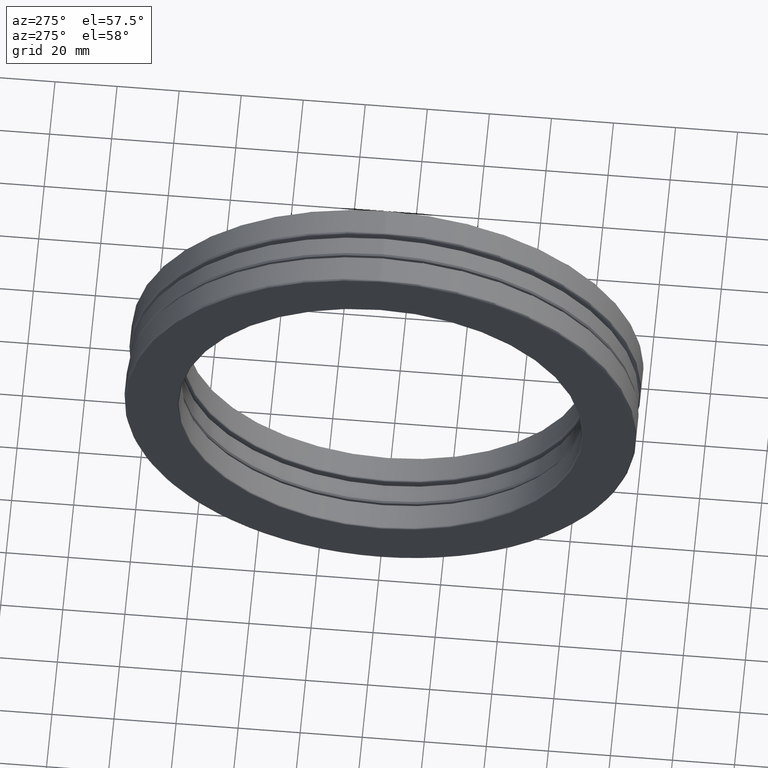
[diagram: clean part render]
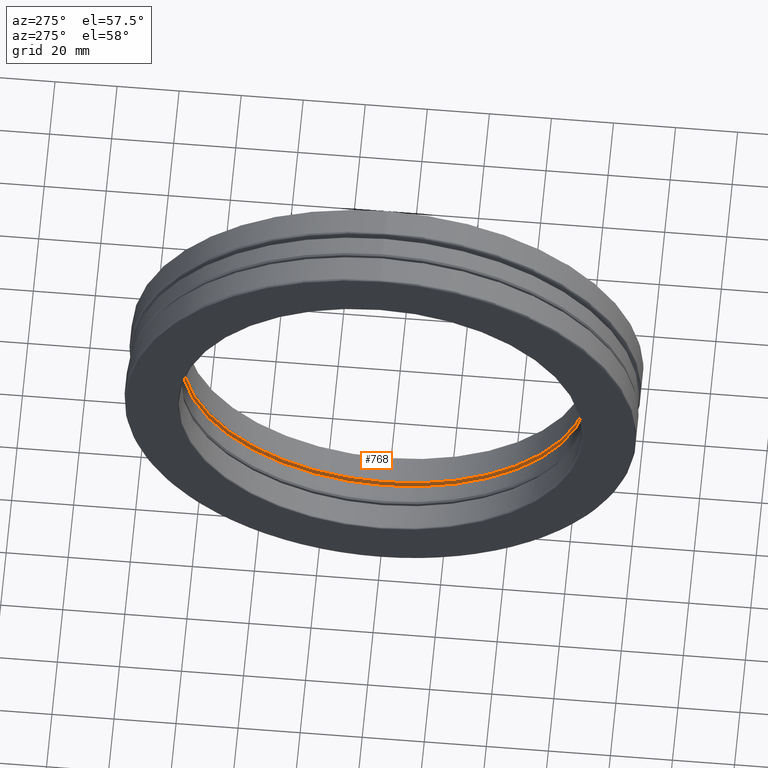
[diagram: same view with one face highlighted and labeled with its STEP entity id]
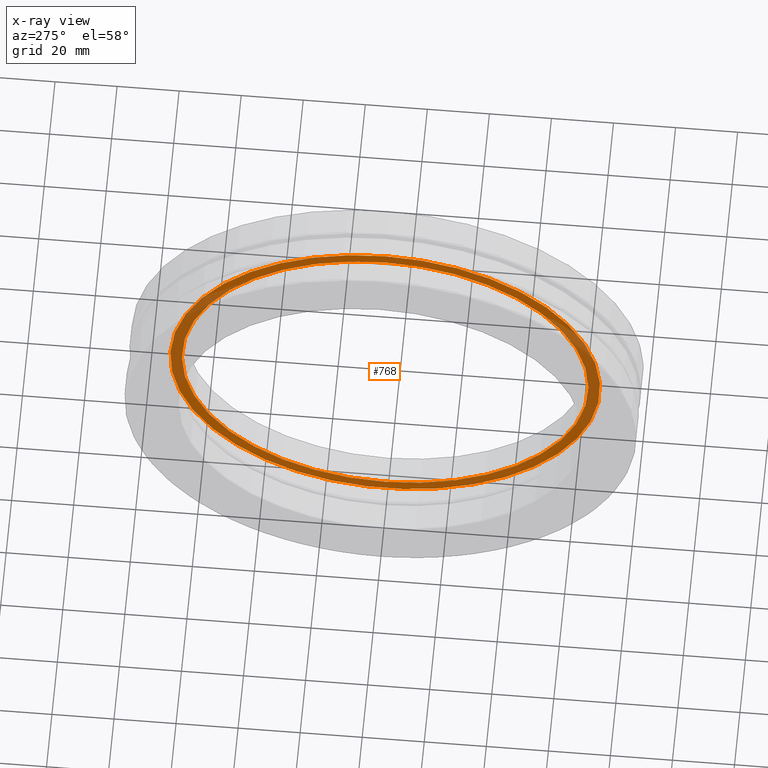
[diagram: x-ray of the same camera — body ghosted, the highlighted face saturated]
A machine part, auxiliary view. The second image highlights one B-rep face of the part: STEP entity #768.
The next image is the same camera in x-ray: the body ghosted, the highlighted face saturated — about 29% of this face is hidden behind the body in this view.
In plain terms, the highlighted planar face has unit normal (1, 0, 0).
Its self-contained STEP definition (entity closure, byte-faithful):
#5 = EDGE_CURVE ( 'NONE', #334, #334, #506, .T. ) ;
#25 = DIRECTION ( 'NONE',  ( 1.000000000000000000, 0.0000000000000000000, 0.0000000000000000000 ) ) ;
#87 = AXIS2_PLACEMENT_3D ( 'NONE', #700, #644, #574 ) ;
#111 = CARTESIAN_POINT ( 'NONE',  ( 0.1771702100000013500, 0.0000000000000000000, 2.727117697348755400 ) ) ;
#160 = PLANE ( 'NONE',  #685 ) ;
#185 = ORIENTED_EDGE ( 'NONE', *, *, #452, .T. ) ;
#191 = DIRECTION ( 'NONE',  ( 0.0000000000000000000, 0.0000000000000000000, 1.000000000000000000 ) ) ;
#204 = AXIS2_PLACEMENT_3D ( 'NONE', #566, #447, #191 ) ;
#305 = VERTEX_POINT ( 'NONE', #111 ) ;
#334 = VERTEX_POINT ( 'NONE', #543 ) ;
#352 = CARTESIAN_POINT ( 'NONE',  ( 0.1771702100000013500, 0.0000000000000000000, 0.0000000000000000000 ) ) ;
#447 = DIRECTION ( 'NONE',  ( -1.000000000000000000, -0.0000000000000000000, -0.0000000000000000000 ) ) ;
#452 = EDGE_CURVE ( 'NONE', #305, #305, #753, .T. ) ;
#506 = CIRCLE ( 'NONE', #204, 2.579000000000000200 ) ;
#543 = CARTESIAN_POINT ( 'NONE',  ( 0.1771702100000013500, 0.0000000000000000000, 2.579000000000000200 ) ) ;
#566 = CARTESIAN_POINT ( 'NONE',  ( 0.1771702100000013500, 0.0000000000000000000, 0.0000000000000000000 ) ) ;
#574 = DIRECTION ( 'NONE',  ( 0.0000000000000000000, 0.0000000000000000000, 1.000000000000000000 ) ) ;
#594 = FACE_OUTER_BOUND ( 'NONE', #810, .T. ) ;
#599 = DIRECTION ( 'NONE',  ( 0.0000000000000000000, 0.0000000000000000000, -1.000000000000000000 ) ) ;
#610 = ORIENTED_EDGE ( 'NONE', *, *, #5, .F. ) ;
#644 = DIRECTION ( 'NONE',  ( -1.000000000000000000, -0.0000000000000000000, -0.0000000000000000000 ) ) ;
#658 = EDGE_LOOP ( 'NONE', ( #610 ) ) ;
#685 = AXIS2_PLACEMENT_3D ( 'NONE', #352, #25, #599 ) ;
#700 = CARTESIAN_POINT ( 'NONE',  ( 0.1771702100000013500, 0.0000000000000000000, 0.0000000000000000000 ) ) ;
#703 = FACE_BOUND ( 'NONE', #658, .T. ) ;
#753 = CIRCLE ( 'NONE', #87, 2.727117697348755400 ) ;
#768 = ADVANCED_FACE ( 'NONE', ( #703, #594 ), #160, .F. ) ;
#810 = EDGE_LOOP ( 'NONE', ( #185 ) ) ;